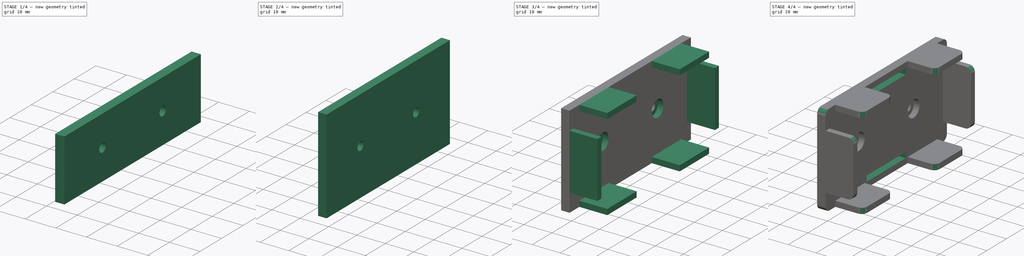
[diagram: build sequence overview — one tinted view per stage of 4, left to right]
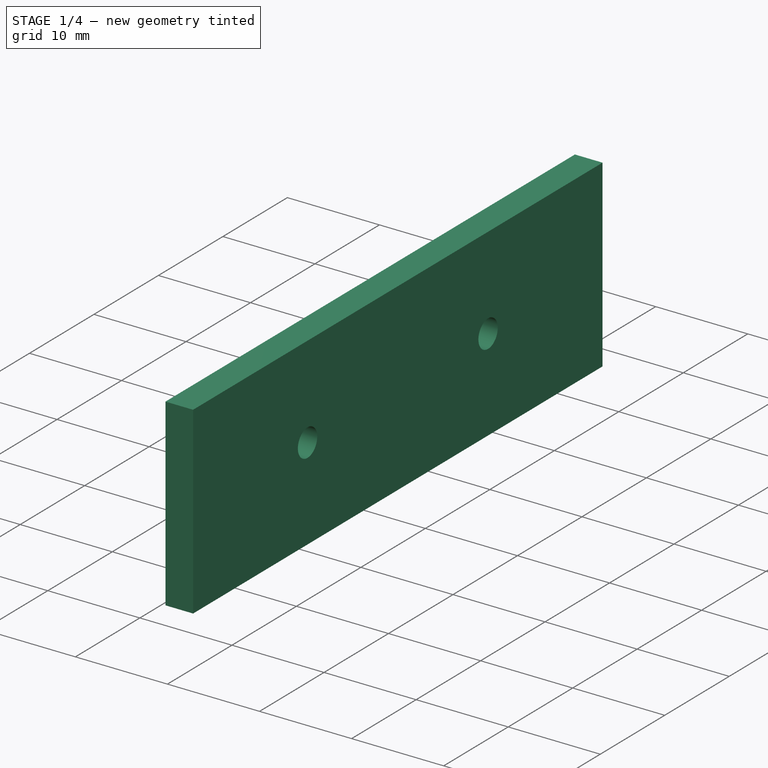
[diagram: stage 1 of 4 — iso view after this stage's code; geometry added in this stage tinted green]
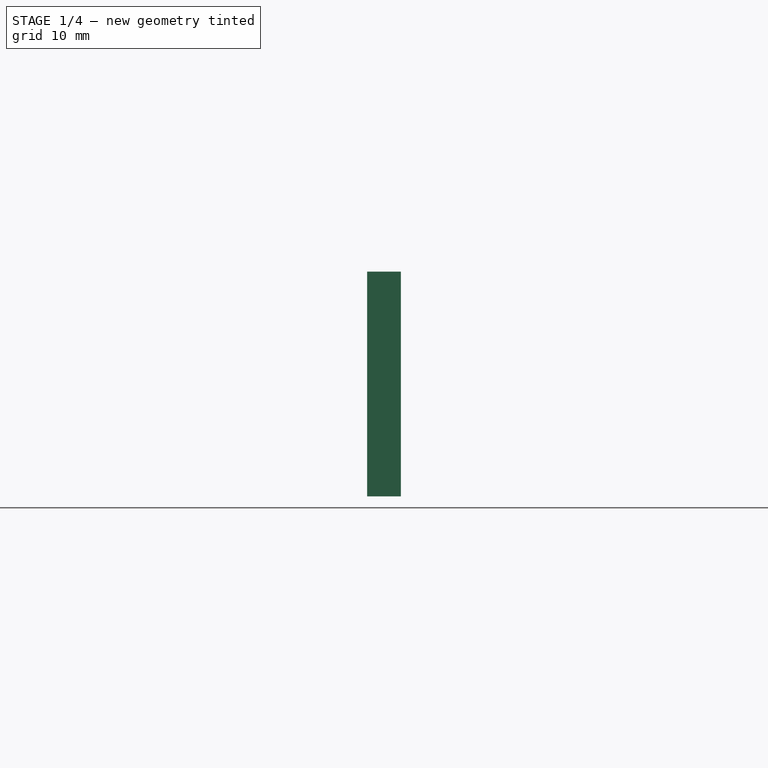
[diagram: stage 1 of 4 — front view after this stage's code; geometry added in this stage tinted green]
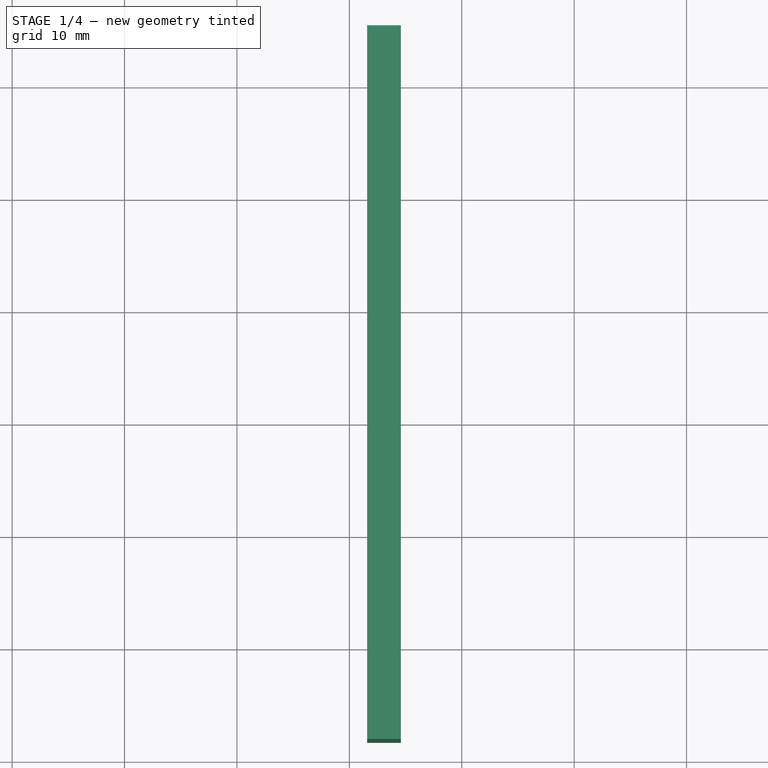
[diagram: stage 1 of 4 — top view after this stage's code; geometry added in this stage tinted green]
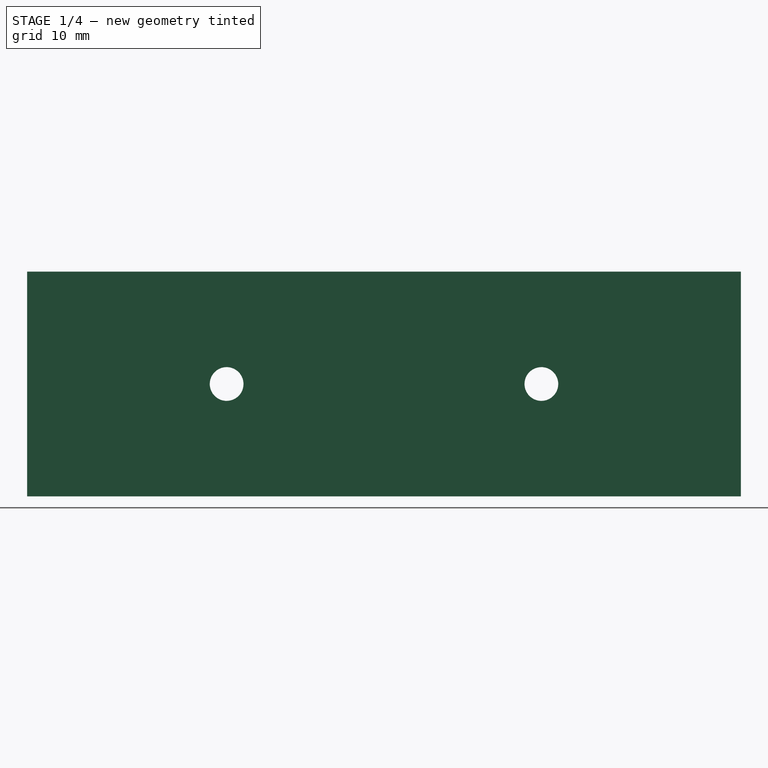
[diagram: stage 1 of 4 — right view after this stage's code; geometry added in this stage tinted green]
FCSTD DOCUMENT  (FreeCAD 0.19R24267 +148 (Git))
Label: robot_nRF9160
License: All rights reserved
LicenseURL: http://en.wikipedia.org/wiki/All_rights_reserved
objects: Sketcher::SketchObject×9, PartDesign::Mirrored×6, PartDesign::Pad×5, App::Part×4, PartDesign::Pocket×4, PartDesign::ShapeBinder×3, PartDesign::Body×3, PartDesign::Plane×3, PartDesign::MultiTransform×2, Part::Feature×1, PartDesign::Fillet×1
note: 47 computed .brp shape members not serialized (recipe doc carries the construction recipe); baked Part::Feature solids carry a one-line shape summary decoded from their .brp

FEATURE [Part::Feature] Feature  label="nRF9160dk"
  shape: bbox 155 x 63.52 x 11.48 mm, 29872 faces, 720 solids (baked)
FEATURE [App::Part] Part  label="nRF9160dk001"
  Group = -> [Feature]
  Origin = -> Origin
FEATURE [PartDesign::ShapeBinder] ShapeBinder
  Support = -> [Feature]
  TraceSupport = false
FEATURE [Sketcher::SketchObject] Sketch
  ExternalGeometry = -> [ShapeBinder]
  FullyConstrained = true
  MapMode = 5
  Placement = pos=(0,0,0) rot=(1,0,0;3.14159rad)
  Support = -> [ShapeBinder]
  sketch-geometry (19):
    g0: LineSegment StartX=36.5823 StartY=-51.7166 StartZ=0 EndX=36.5823 EndY=-115.217 EndZ=0
    g1: LineSegment StartX=36.5823 StartY=-115.217 StartZ=0 EndX=201.582 EndY=-115.218 EndZ=0
    g2: LineSegment StartX=201.582 StartY=-115.218 StartZ=0 EndX=201.582 EndY=-51.7166 EndZ=0
    g3: LineSegment StartX=201.582 StartY=-51.7166 StartZ=0 EndX=36.5823 EndY=-51.7166 EndZ=0
    g4: Circle CenterX=51.8223 CenterY=-107.598 CenterZ=0 NormalX=0 NormalY=0 NormalZ=1 AngleXU=0 Radius=1.5
    g5: Circle CenterX=50.5523 CenterY=-59.3376 CenterZ=0 NormalX=0 NormalY=0 NormalZ=1 AngleXU=0 Radius=1.5
    g6: Circle CenterX=133.102 CenterY=-59.3376 CenterZ=0 NormalX=0 NormalY=0 NormalZ=1 AngleXU=0 Radius=1.5
    g7: LineSegment StartX=196.582 StartY=-56.7166 StartZ=0 EndX=196.582 EndY=-71.217 EndZ=0
    g8: LineSegment StartX=196.582 StartY=-71.217 StartZ=0 EndX=193.582 EndY=-71.217 EndZ=0
    g9: LineSegment StartX=193.582 StartY=-71.217 StartZ=0 EndX=193.582 EndY=-56.7166 EndZ=0
    g10: LineSegment StartX=193.582 StartY=-56.7166 StartZ=0 EndX=196.582 EndY=-56.7166 EndZ=0
    g11: LineSegment StartX=196.582 StartY=-90.7173 StartZ=0 EndX=196.582 EndY=-76.217 EndZ=0
    g12: LineSegment StartX=196.582 StartY=-76.217 StartZ=0 EndX=193.582 EndY=-76.217 EndZ=0
    g13: LineSegment StartX=193.582 StartY=-76.217 StartZ=0 EndX=193.582 EndY=-90.7173 EndZ=0
    g14: LineSegment StartX=193.582 StartY=-90.7173 StartZ=0 EndX=196.582 EndY=-90.7173 EndZ=0
    g15: LineSegment StartX=196.582 StartY=-95.7173 StartZ=0 EndX=193.582 EndY=-95.7173 EndZ=0
    g16: LineSegment StartX=193.582 StartY=-95.7173 StartZ=0 EndX=193.582 EndY=-110.218 EndZ=0
    g17: LineSegment StartX=193.582 StartY=-110.218 StartZ=0 EndX=196.582 EndY=-110.218 EndZ=0
    g18: LineSegment StartX=196.582 StartY=-110.218 StartZ=0 EndX=196.582 EndY=-95.7173 EndZ=0
  constraints (49):
    c: Coincident(g0,g1)
    c: Coincident(g1,g2)
    c: Coincident(g2,g3)
    c: Coincident(g3,g0)
    c: Parallel(g2,g-9)
    c: Tangent(g0,g-6)
    c: Tangent(g3,g-7)
    c: Tangent(g1,g-8)
    c: Distance(g-9,g2) = 10
    c: Coincident(g4,g-4)
    c: Coincident(g5,g-5)
    c: Coincident(g6,g-3)
    c: Diameter(g4) = 3
    c: Diameter(g5) = 3
    c: Diameter(g6) = 3
    c: Coincident(g7,g8)
    c: Coincident(g8,g9)
    c: Coincident(g9,g10)
    c: Coincident(g10,g7)
    c: Parallel(g10,g8)
    c: Parallel(g7,g9)
    c: Perpendicular(g7,g10)
    c: Coincident(g11,g12)
    c: Coincident(g12,g13)
    c: Coincident(g13,g14)
    c: Coincident(g14,g11)
    c: Coincident(g15,g16)
    c: Coincident(g16,g17)
    c: Coincident(g17,g18)
    c: Coincident(g18,g15)
    c: Parallel(g14,g12)
    c: Parallel(g13,g11)
    c: Parallel(g16,g18)
    c: Parallel(g17,g15)
    c: Perpendicular(g14,g11)
    c: Perpendicular(g18,g15)
    c: Tangent(g18,g11)
    c: Tangent(g11,g7)
    c: Parallel(g10,g3)
    c: Distance(g7,g3) = 5
    c: Distance(g7,g2) = 5
    c: Distance(g9,g-9) = 2
    c: Distance(g7,g11) = 5
    c: Distance(g11,g15) = 5
    c: Distance(g17,g1) = 5
    c: Equal(g18,g11)
    c: Equal(g11,g7)
    c: Equal(g8,g12)
    c: Equal(g14,g15)
FEATURE [PartDesign::Pad] Pad
  Direction = (1,1,1)
  Length = 5.5
  Length2 = 100
  Profile = -> Sketch
  Type = 0
FEATURE [Sketcher::SketchObject] Sketch001
  ExternalGeometry = -> [Pad]
  FullyConstrained = true
  MapMode = 5
  Placement = pos=(201.582,-9.24306e-05,0) rot=(0.57735,0.57735,0.57735;2.0944rad)
  Support = -> [Pad]
  sketch-geometry (5):
    g0: LineSegment StartX=83.4673 StartY=1.39e-14 StartZ=0 EndX=83.4673 EndY=-5.5 EndZ=0
    g1: LineSegment StartX=51.7167 StartY=-2.75 StartZ=0 EndX=115.218 EndY=-2.75 EndZ=0
    g2: GeomPoint X=83.4673 Y=-2.75 Z=0
    g3: Circle CenterX=97.4673 CenterY=-2.75 CenterZ=0 NormalX=0 NormalY=0 NormalZ=1 AngleXU=0 Radius=1.5
    g4: Circle CenterX=69.4673 CenterY=-2.75 CenterZ=0 NormalX=0 NormalY=0 NormalZ=1 AngleXU=0 Radius=1.5
  constraints (12):
    c: PointOnObject(g0,g-4)
    c: Perpendicular(g-3,g0)
    c: Symmetric(g-6,g-5,g0)
    c: PointOnObject(g1,g-5)
    c: PointOnObject(g2,g1)
    c: Symmetric(g0,g0,g2)
    c: Symmetric(g-6,g-6,g1)
    c: PointOnObject(g3,g1)
    c: Equal(g3,g4)
    c: Symmetric(g3,g4,g0)
    c: Diameter(g3) = 3
    c: Distance(g3,g4) = 28
FEATURE [PartDesign::Pocket] Pocket
  BaseFeature = -> Pad
  Length = 0
  Length2 = 100
  Profile = -> Sketch001
  Type = 3
  UpToFace = -> Pad [Face13]
FEATURE [Sketcher::SketchObject] Sketch002
  ExternalGeometry = -> [Pocket]
  FullyConstrained = true
  MapMode = 5
  Placement = pos=(0,0,-5.5) rot=(1,0,0;3.14159rad)
  Support = -> [Pocket]
  sketch-geometry (18):
    g0: LineSegment StartX=35.5823 StartY=-109.217 StartZ=0 EndX=35.5823 EndY=-106.117 EndZ=0
    g1: LineSegment StartX=35.5823 StartY=-106.117 StartZ=0 EndX=41.4823 EndY=-106.117 EndZ=0
    g2: LineSegment StartX=41.4823 StartY=-106.117 StartZ=0 EndX=41.4823 EndY=-103.017 EndZ=0
    g3: LineSegment StartX=41.4823 StartY=-103.017 StartZ=0 EndX=44.5823 EndY=-103.017 EndZ=0
    g4: LineSegment StartX=44.5823 StartY=-103.017 StartZ=0 EndX=44.5823 EndY=-106.117 EndZ=0
    g5: LineSegment StartX=44.5823 StartY=-106.117 StartZ=0 EndX=47.6823 EndY=-106.117 EndZ=0
    g6: LineSegment StartX=47.6823 StartY=-106.117 StartZ=0 EndX=47.6823 EndY=-109.217 EndZ=0
    g7: LineSegment StartX=47.6823 StartY=-109.217 StartZ=0 EndX=35.5823 EndY=-109.217 EndZ=0
    g8: LineSegment StartX=35.5825 StartY=-57.7166 StartZ=0 EndX=47.6825 EndY=-57.7167 EndZ=0
    g9: LineSegment StartX=47.6825 StartY=-57.7167 StartZ=0 EndX=47.6824 EndY=-60.8167 EndZ=0
    g10: LineSegment StartX=47.6824 StartY=-60.8167 StartZ=0 EndX=44.5824 EndY=-60.8167 EndZ=0
    g11: LineSegment StartX=44.5824 StartY=-60.8167 StartZ=0 EndX=44.5824 EndY=-63.9167 EndZ=0
    g12: LineSegment StartX=44.5824 StartY=-63.9167 StartZ=0 EndX=41.4824 EndY=-63.9166 EndZ=0
    g13: LineSegment StartX=41.4824 StartY=-63.9166 StartZ=0 EndX=41.4824 EndY=-60.8166 EndZ=0
    g14: LineSegment StartX=41.4824 StartY=-60.8166 StartZ=0 EndX=35.5824 EndY=-60.8166 EndZ=0
    g15: LineSegment StartX=35.5824 StartY=-60.8166 StartZ=0 EndX=35.5825 EndY=-57.7166 EndZ=0
    g16: GeomPoint X=36.5823 Y=-83.4666 Z=0
    g17: LineSegment StartX=201.582 StartY=-83.4672 StartZ=0 EndX=36.5823 EndY=-83.4666 EndZ=0
  constraints (43):
    c: Coincident(g0,g1)
    c: Coincident(g1,g2)
    c: Coincident(g2,g3)
    c: Coincident(g3,g4)
    c: Coincident(g4,g5)
    c: Coincident(g5,g6)
    c: Coincident(g6,g7)
    c: Coincident(g7,g0)
    c: Coincident(g8,g9)
    c: Coincident(g9,g10)
    c: Coincident(g10,g11)
    c: Coincident(g11,g12)
    c: Coincident(g12,g13)
    c: Coincident(g13,g14)
    c: Coincident(g14,g15)
    c: Coincident(g15,g8)
    c: Symmetric(g-5,g-5,g16)
    c: Coincident(g17,g16)
    c: Symmetric(g-6,g-6,g17)
    c: Symmetric(g0,g14,g17)
    c: Symmetric(g0,g8,g17)
    c: Symmetric(g1,g13,g17)
    c: Symmetric(g2,g12,g17)
    c: Symmetric(g3,g11,g17)
    c: Symmetric(g4,g10,g17)
    c: Symmetric(g5,g9,g17)
    c: Symmetric(g6,g8,g17)
    c: Perpendicular(g0,g7)
    c: Perpendicular(g0,g1)
    c: Perpendicular(g7,g6)
    c: Perpendicular(g6,g5)
    c: Parallel(g4,g2)
    c: Parallel(g3,g7)
    c: Parallel(g0,g2)
    c: Equal(g4,g2)
    c: Distance(g0) = 3.1
    c: Distance(g2) = 3.1
    c: Distance(g3) = 3.1
    c: Distance(g5) = 3.1
    c: Distance(g0,g-3) = 6
    c: Distance(g6,g-5) = 11.1
    c: Parallel(g-5,g0)
    c: Distance(g0,g-5) = 1
FEATURE [PartDesign::Pocket] Pocket001
  BaseFeature = -> Pocket
  Length = 3
  Length2 = 100
  Profile = -> Sketch002
  Type = 0
FEATURE [PartDesign::Body] Body
  Group = -> [ShapeBinder,Sketch,Pad,Sketch001,Pocket,Sketch002,Pocket001]
  Origin = -> Origin002
  Tip = -> Pocket001
FEATURE [App::Part] Part001  label="Chassis"
  Group = -> [Body]
  Origin = -> Origin001
FEATURE [PartDesign::ShapeBinder] ShapeBinder001
  Support = -> [Pocket001]
  TraceSupport = false
FEATURE [Sketcher::SketchObject] Sketch003
  ExternalGeometry = -> [ShapeBinder001]
  FullyConstrained = true
  MapMode = 5
  Placement = pos=(201.582,-9.24306e-05,0) rot=(0.57735,0.57735,0.57735;2.0944rad)
  Support = -> [ShapeBinder001]
  sketch-geometry (7):
    g0: LineSegment StartX=51.7167 StartY=7.25 StartZ=0 EndX=115.218 EndY=7.25 EndZ=0
    g1: LineSegment StartX=115.218 StartY=7.25 StartZ=0 EndX=115.218 EndY=-12.75 EndZ=0
    g2: LineSegment StartX=115.218 StartY=-12.75 StartZ=0 EndX=51.7167 EndY=-12.75 EndZ=0
    g3: LineSegment StartX=51.7167 StartY=-12.75 StartZ=0 EndX=51.7167 EndY=7.25 EndZ=0
    g4: Circle CenterX=97.4673 CenterY=-2.75 CenterZ=0 NormalX=0 NormalY=0 NormalZ=1 AngleXU=0 Radius=1.5
    g5: Circle CenterX=69.4673 CenterY=-2.75 CenterZ=0 NormalX=0 NormalY=0 NormalZ=1 AngleXU=0 Radius=1.5
    g6: LineSegment StartX=69.4673 StartY=-2.75 StartZ=0 EndX=97.4673 EndY=-2.75 EndZ=0
  constraints (16):
    c: Coincident(g0,g1)
    c: Coincident(g1,g2)
    c: Coincident(g2,g3)
    c: Coincident(g3,g0)
    c: Equal(g-7,g4)
    c: Coincident(g5,g-8)
    c: Equal(g-8,g5)
    c: Parallel(g0,g2)
    c: Parallel(g2,g-3)
    c: Tangent(g1,g-6)
    c: Tangent(g3,g-4)
    c: Coincident(g6,g5)
    c: Coincident(g6,g4)
    c: Coincident(g4,g-7)
    c: Symmetric(g1,g0,g6)
    c: Distance(g1) = 20
FEATURE [PartDesign::Pad] Pad001
  Direction = (1,1,1)
  Length = 3
  Length2 = 100
  Profile = -> Sketch003
  Type = 0
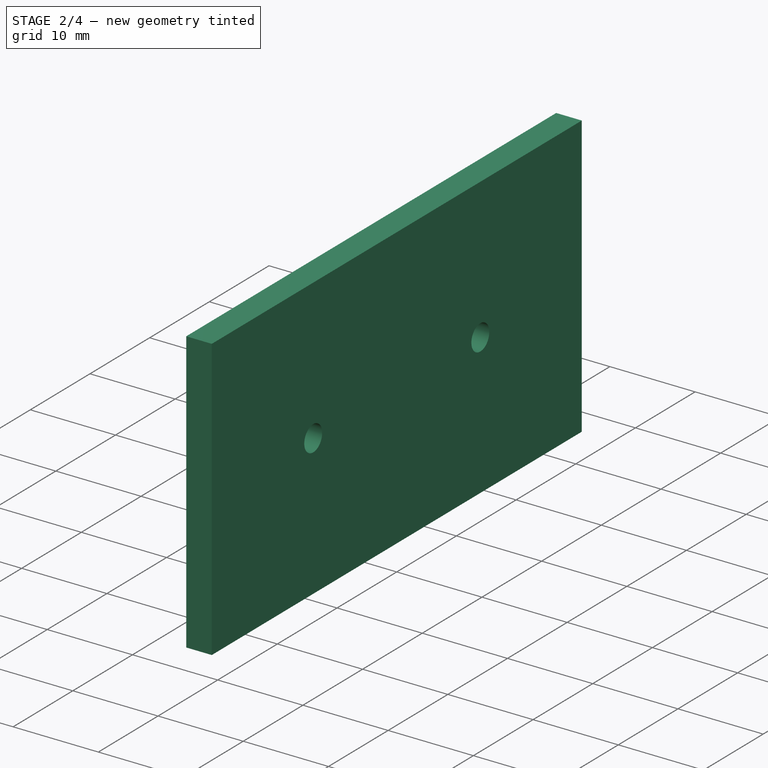
[diagram: stage 2 of 4 — iso view after this stage's code; geometry added in this stage tinted green]
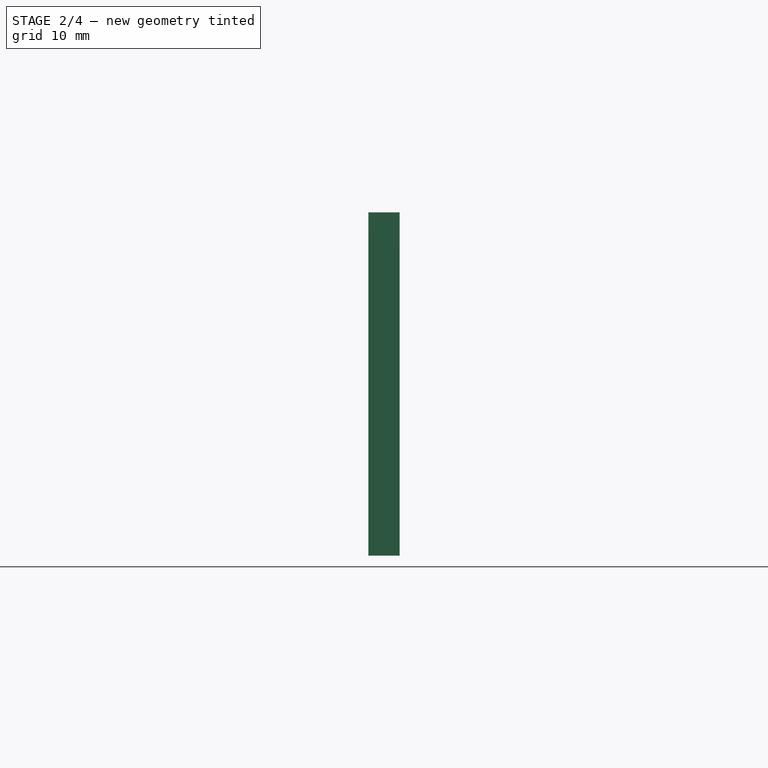
[diagram: stage 2 of 4 — front view after this stage's code; geometry added in this stage tinted green]
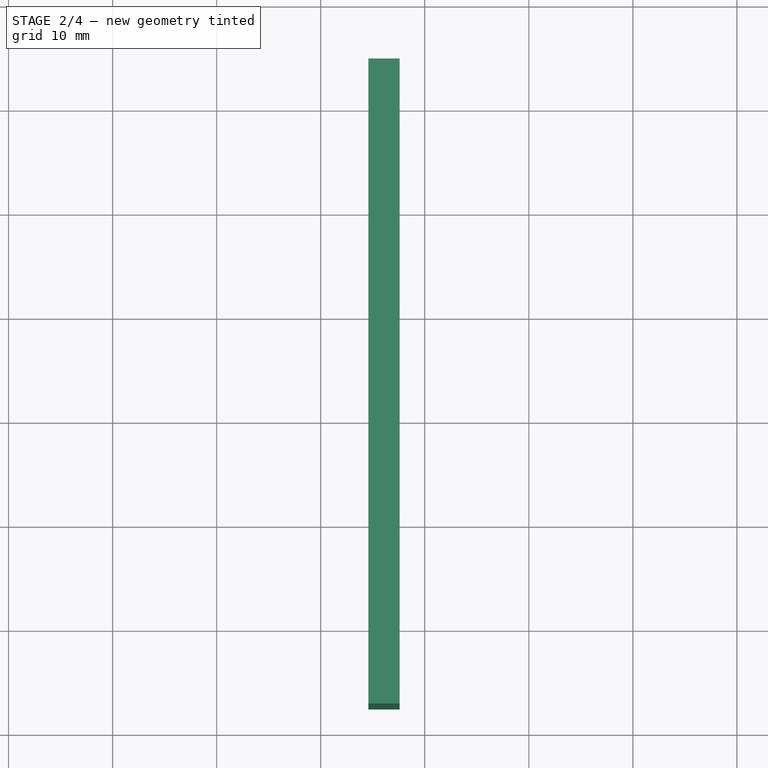
[diagram: stage 2 of 4 — top view after this stage's code; geometry added in this stage tinted green]
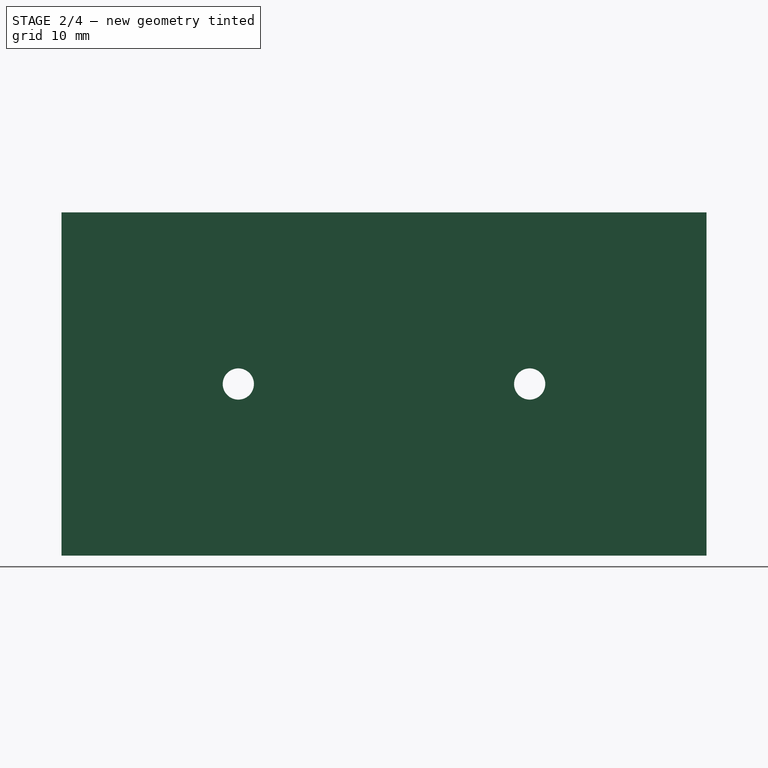
[diagram: stage 2 of 4 — right view after this stage's code; geometry added in this stage tinted green]
FEATURE [Sketcher::SketchObject] Sketch004
  ExternalGeometry = -> [Pad001,ShapeBinder001]
  FullyConstrained = true
  MapMode = 5
  Placement = pos=(5.28303e-05,115.218,-1.014e-13) rot=(0,0.707107,0.707107;3.14159rad)
  Support = -> [Pad001]
  sketch-geometry (4):
    g0: LineSegment StartX=-201.582 StartY=0.1 StartZ=0 EndX=-196.582 EndY=0.1 EndZ=0
    g1: LineSegment StartX=-196.582 StartY=0.1 StartZ=0 EndX=-196.582 EndY=2.25002 EndZ=0
    g2: LineSegment StartX=-201.582 StartY=0.1 StartZ=0 EndX=-201.582 EndY=7.25 EndZ=0
    g3: ArcOfCircle CenterX=-196.582 CenterY=7.25002 CenterZ=0 NormalX=0 NormalY=0 NormalZ=1 AngleXU=0 Radius=5 StartAngle=3.1416 EndAngle=4.71239
  constraints (12):
    c: Coincident(g1,g0)
    c: Coincident(g2,g0)
    c: Coincident(g2,g-4)
    c: PointOnObject(g0,g-4)
    c: Perpendicular(g2,g0)
    c: Perpendicular(g1,g0)
    c: Distance(g0,g-5) = 0.1
    c: Distance(g0) = 5
    c: Coincident(g3,g2)
    c: Coincident(g3,g1)
    c: Perpendicular(g3,g1)
    c: Tangent(g3,g2)
FEATURE [PartDesign::Pad] Pad002
  BaseFeature = -> Pad001
  Direction = (1,1,1)
  Length = 10
  Length2 = 100
  Profile = -> Sketch004
  Type = 3
  UpToFace = -> Pad001 [Face4]
FEATURE [PartDesign::Plane] DatumPlane
  Length = 265.466
  MapMode = 45
  Placement = pos=(201.582,51.7166,-2.75) rot=(0,0,1;0rad)
  ResizeMode = 0
  Support = -> [Pad002]
  Width = 176.102
FEATURE [PartDesign::Mirrored] Mirrored
  BaseFeature = -> Pad002
  MirrorPlane = -> DatumPlane
  Originals = -> [Pad002]
FEATURE [PartDesign::Body] Body001
  Group = -> [ShapeBinder001,Sketch003,Pad001,Sketch004,Pad002,DatumPlane,Mirrored]
  Origin = -> Origin004
  Tip = -> Mirrored
FEATURE [App::Part] Part002  label="Battery bracket mount"
  Group = -> [Body001]
  Origin = -> Origin003
FEATURE [PartDesign::ShapeBinder] ShapeBinder002
  Placement = pos=(3,-1.37558e-06,0) rot=(0,0,1;0rad)
  Support = -> [Mirrored]
  TraceSupport = false
FEATURE [Sketcher::SketchObject] Sketch005
  ExternalGeometry = -> [ShapeBinder002]
  FullyConstrained = true
  MapMode = 5
  Placement = pos=(204.582,-9.38062e-05,0) rot=(0.57735,0.57735,0.57735;2.0944rad)
  Support = -> [ShapeBinder002]
  sketch-geometry (9):
    g0: LineSegment StartX=97.4673 StartY=-2.75 StartZ=0 EndX=69.4673 EndY=-2.75 EndZ=0
    g1: Circle CenterX=97.4673 CenterY=-2.75 CenterZ=0 NormalX=0 NormalY=0 NormalZ=1 AngleXU=0 Radius=1.5
    g2: Circle CenterX=69.4673 CenterY=-2.75 CenterZ=0 NormalX=0 NormalY=0 NormalZ=1 AngleXU=0 Radius=1.5
    g3: GeomPoint X=83.4673 Y=-2.75 Z=0
    g4: LineSegment StartX=83.4673 StartY=13.75 StartZ=0 EndX=83.4673 EndY=-19.25 EndZ=0
    g5: LineSegment StartX=52.4673 StartY=13.75 StartZ=0 EndX=52.4673 EndY=-19.25 EndZ=0
    g6: LineSegment StartX=52.4673 StartY=-19.25 StartZ=0 EndX=114.467 EndY=-19.25 EndZ=0
    g7: LineSegment StartX=114.467 StartY=-19.25 StartZ=0 EndX=114.467 EndY=13.75 EndZ=0
    g8: LineSegment StartX=114.467 StartY=13.75 StartZ=0 EndX=52.4673 EndY=13.75 EndZ=0
  constraints (20):
    c: Coincident(g0,g-4)
    c: Coincident(g0,g-3)
    c: Coincident(g1,g0)
    c: Symmetric(g2,g1,g3)
    c: Coincident(g2,g0)
    c: Symmetric(g4,g4,g3)
    c: Perpendicular(g4,g0)
    c: Equal(g2,g-3)
    c: Equal(g1,g-4)
    c: Coincident(g5,g6)
    c: Coincident(g6,g7)
    c: Coincident(g7,g8)
    c: Coincident(g8,g5)
    c: PointOnObject(g4,g8)
    c: Perpendicular(g8,g5)
    c: Symmetric(g7,g5,g3)
    c: Symmetric(g6,g5,g3)
    c: Perpendicular(g8,g4)
    c: Distance(g8) = 62
    c: Distance(g7) = 33
FEATURE [PartDesign::Pad] Pad003
  Direction = (1,1,1)
  Length = 3
  Length2 = 100
  Placement = pos=(3,-1.37558e-06,0) rot=(0,0,1;0rad)
  Profile = -> Sketch005
  Type = 0
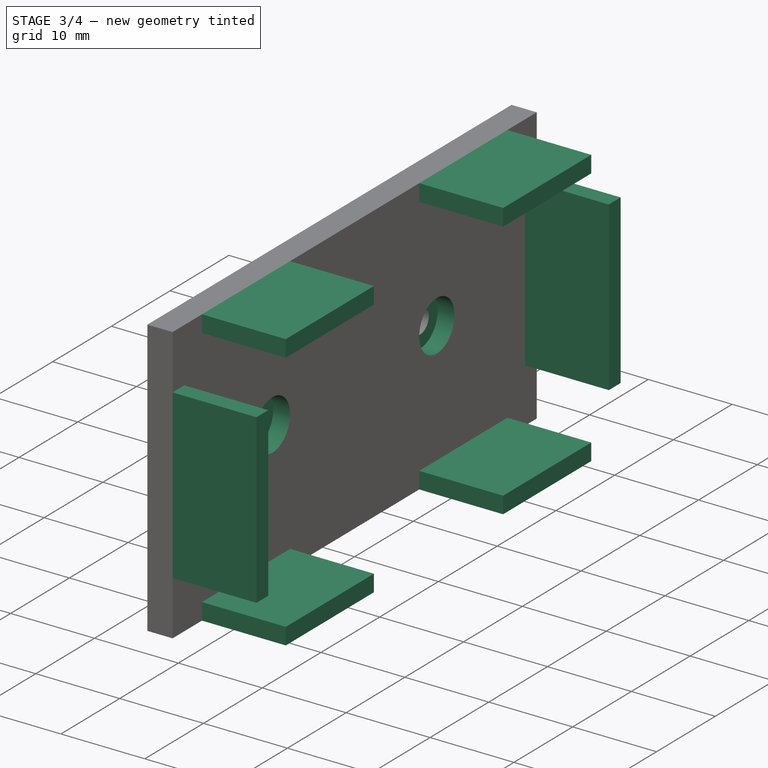
[diagram: stage 3 of 4 — iso view after this stage's code; geometry added in this stage tinted green]
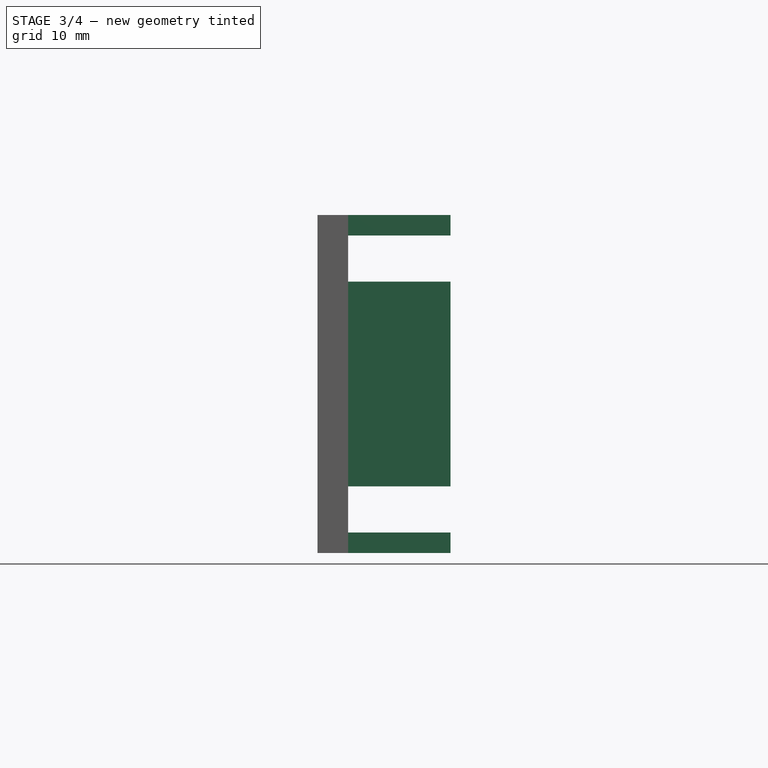
[diagram: stage 3 of 4 — front view after this stage's code; geometry added in this stage tinted green]
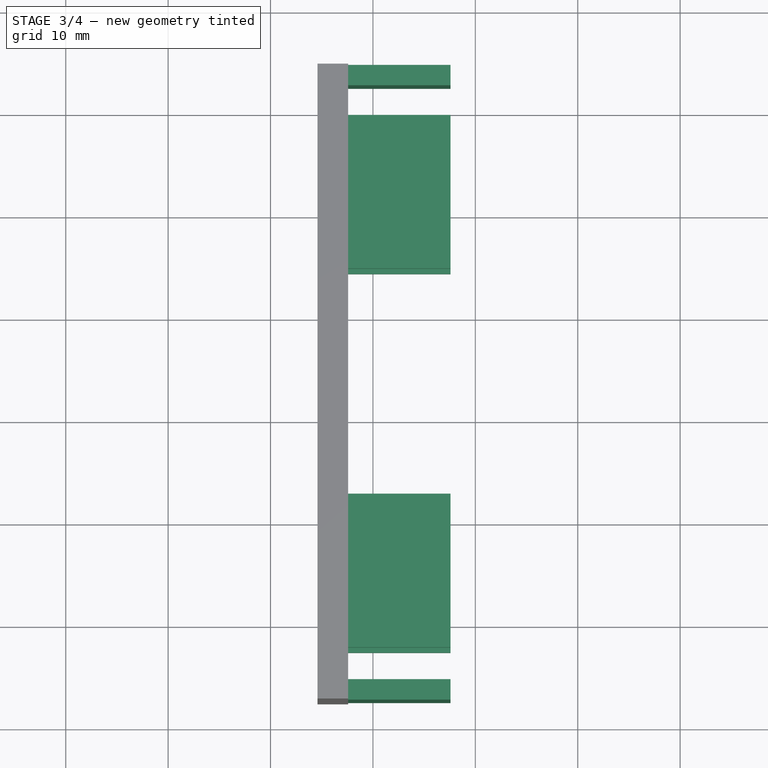
[diagram: stage 3 of 4 — top view after this stage's code; geometry added in this stage tinted green]
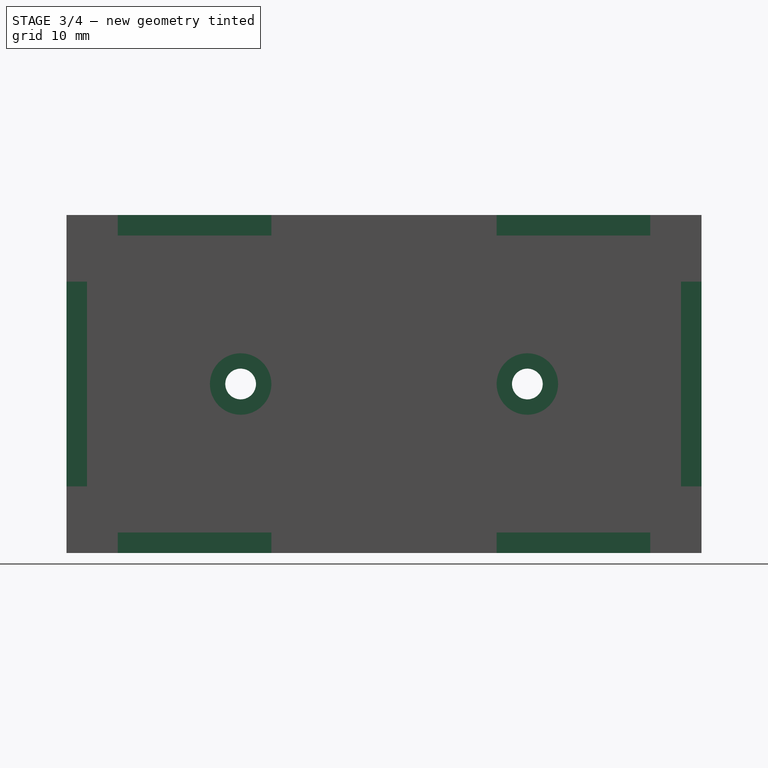
[diagram: stage 3 of 4 — right view after this stage's code; geometry added in this stage tinted green]
FEATURE [Sketcher::SketchObject] Sketch006
  ExternalGeometry = -> [Pad003]
  FullyConstrained = true
  MapMode = 5
  Placement = pos=(207.582,-9.51818e-05,0) rot=(0.57735,0.57735,0.57735;2.0944rad)
  Support = -> [Pad003]
  sketch-geometry (2):
    g0: Circle CenterX=97.4673 CenterY=-2.75 CenterZ=0 NormalX=0 NormalY=0 NormalZ=1 AngleXU=0 Radius=3
    g1: Circle CenterX=69.4673 CenterY=-2.75 CenterZ=0 NormalX=0 NormalY=0 NormalZ=1 AngleXU=0 Radius=3
  constraints (4):
    c: Coincident(g0,g-8)
    c: Coincident(g1,g-7)
    c: Diameter(g1) = 6
    c: Equal(g1,g0)
FEATURE [PartDesign::Pocket] Pocket002
  BaseFeature = -> Pad003
  Length = 2
  Length2 = 100
  Placement = pos=(3,-1.37558e-06,0) rot=(0,0,1;0rad)
  Profile = -> Sketch006
  Type = 0
FEATURE [Sketcher::SketchObject] Sketch007
  ExternalGeometry = -> [Pocket002]
  FullyConstrained = true
  MapMode = 5
  Placement = pos=(207.582,-9.51818e-05,0) rot=(0.57735,0.57735,0.57735;2.0944rad)
  Support = -> [Pocket002]
  sketch-geometry (12):
    g0: GeomPoint X=52.4673 Y=-2.75 Z=0
    g1: GeomPoint X=114.467 Y=-2.75 Z=0
    g2: GeomPoint X=83.4673 Y=13.75 Z=0
    g3: GeomPoint X=83.4673 Y=-19.25 Z=0
    g4: LineSegment StartX=52.4673 StartY=-2.75 StartZ=0 EndX=54.4673 EndY=-2.75 EndZ=0
    g5: LineSegment StartX=54.4673 StartY=-2.75 StartZ=0 EndX=54.4673 EndY=7.25 EndZ=0
    g6: LineSegment StartX=54.4673 StartY=7.25 StartZ=0 EndX=52.4673 EndY=7.25 EndZ=0
    g7: LineSegment StartX=52.4673 StartY=7.25 StartZ=0 EndX=52.4673 EndY=-2.75 EndZ=0
    g8: LineSegment StartX=57.4673 StartY=13.75 StartZ=0 EndX=57.4673 EndY=11.75 EndZ=0
    g9: LineSegment StartX=57.4673 StartY=11.75 StartZ=0 EndX=72.4673 EndY=11.75 EndZ=0
    g10: LineSegment StartX=72.4673 StartY=11.75 StartZ=0 EndX=72.4673 EndY=13.75 EndZ=0
    g11: LineSegment StartX=72.4673 StartY=13.75 StartZ=0 EndX=57.4673 EndY=13.75 EndZ=0
  constraints (27):
    c: Symmetric(g-5,g-4,g1)
    c: Symmetric(g-4,g-6,g2)
    c: Symmetric(g-6,g-6,g0)
    c: Symmetric(g-6,g-5,g3)
    c: Coincident(g4,g0)
    c: Coincident(g4,g5)
    c: Coincident(g5,g6)
    c: Coincident(g6,g7)
    c: Coincident(g7,g4)
    c: PointOnObject(g8,g-3)
    c: Coincident(g8,g9)
    c: Coincident(g9,g10)
    c: PointOnObject(g10,g-3)
    c: Coincident(g10,g11)
    c: Coincident(g11,g8)
    c: PointOnObject(g6,g-6)
    c: Perpendicular(g7,g6)
    c: Perpendicular(g6,g5)
    c: Perpendicular(g7,g4)
    c: Perpendicular(g11,g8)
    c: Perpendicular(g9,g8)
    c: Perpendicular(g10,g9)
    c: Distance(g8) = 2
    c: Distance(g8,g-6) = 5
    c: Distance(g11) = 15
    c: Distance(g6) = 2
    c: Distance(g5) = 10
FEATURE [PartDesign::Pad] Pad004
  BaseFeature = -> Pocket002
  Direction = (1,1,1)
  Length = 10
  Length2 = 100
  Placement = pos=(3,-1.37558e-06,0) rot=(0,0,1;0rad)
  Profile = -> Sketch007
  Type = 0
FEATURE [PartDesign::Plane] DatumPlane001
  Length = 264.609
  MapMode = 45
  Placement = pos=(207.582,83.4672,-19.25) rot=(0,0.707107,0.707107;3.14159rad)
  ResizeMode = 0
  Support = -> [Pad004]
  Width = 72.0265
FEATURE [PartDesign::Mirrored] Mirrored001
  MirrorPlane = -> Pad004 [Face14]
  Placement = pos=(3,-1.37558e-06,2e-16) rot=(0,0,1;0rad)
FEATURE [PartDesign::Mirrored] Mirrored002
  MirrorPlane = -> DatumPlane001
  Placement = pos=(3,-1.37558e-06,2e-16) rot=(0,0,1;0rad)
FEATURE [PartDesign::MultiTransform] MultiTransform
  BaseFeature = -> Pad004
  Originals = -> [Pad004]
  Placement = pos=(3,-1.37558e-06,0) rot=(0,0,1;0rad)
  Transformations = -> [Mirrored001,Mirrored002]
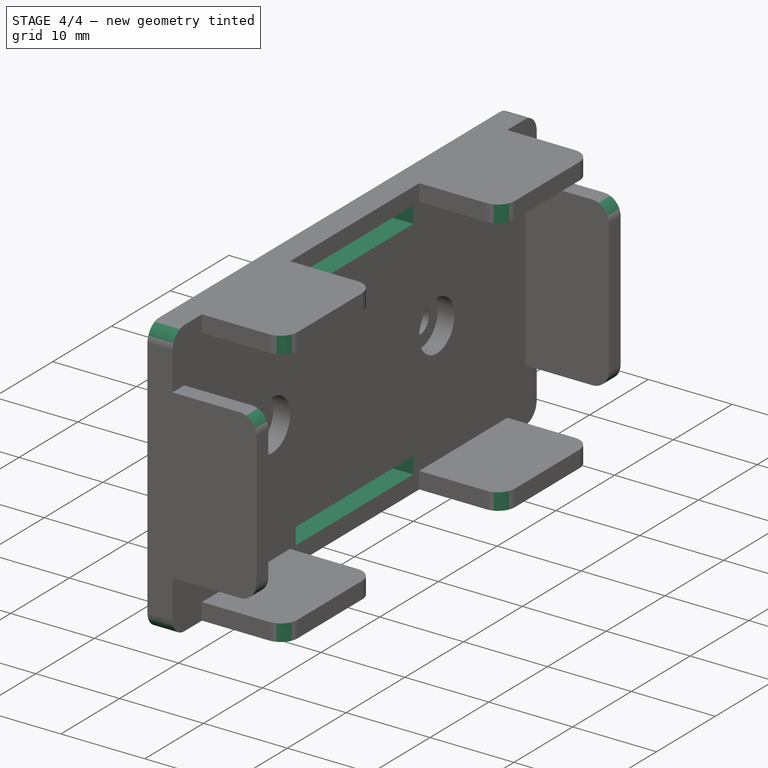
[diagram: stage 4 of 4 — iso view after this stage's code; geometry added in this stage tinted green]
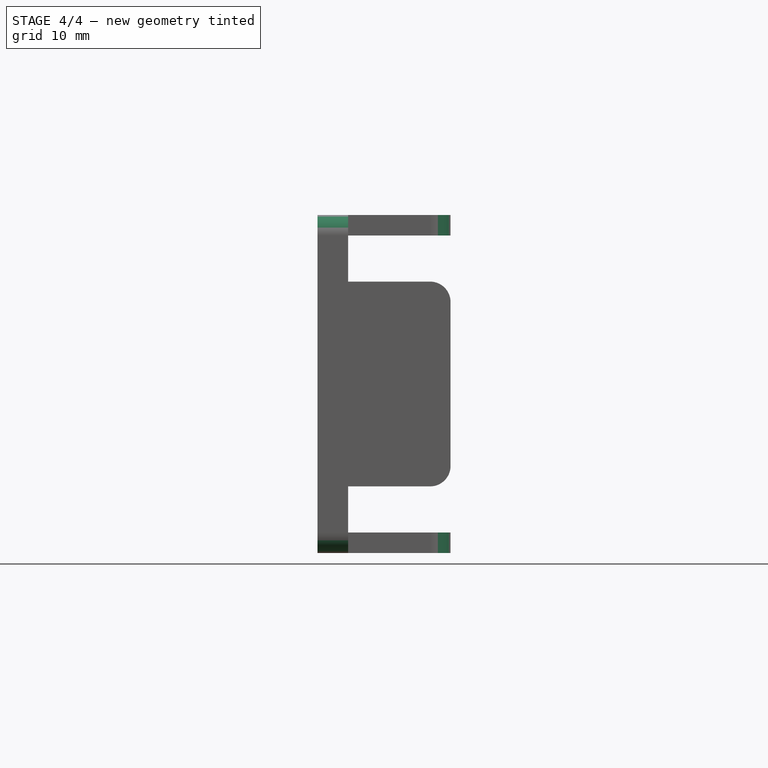
[diagram: stage 4 of 4 — front view after this stage's code; geometry added in this stage tinted green]
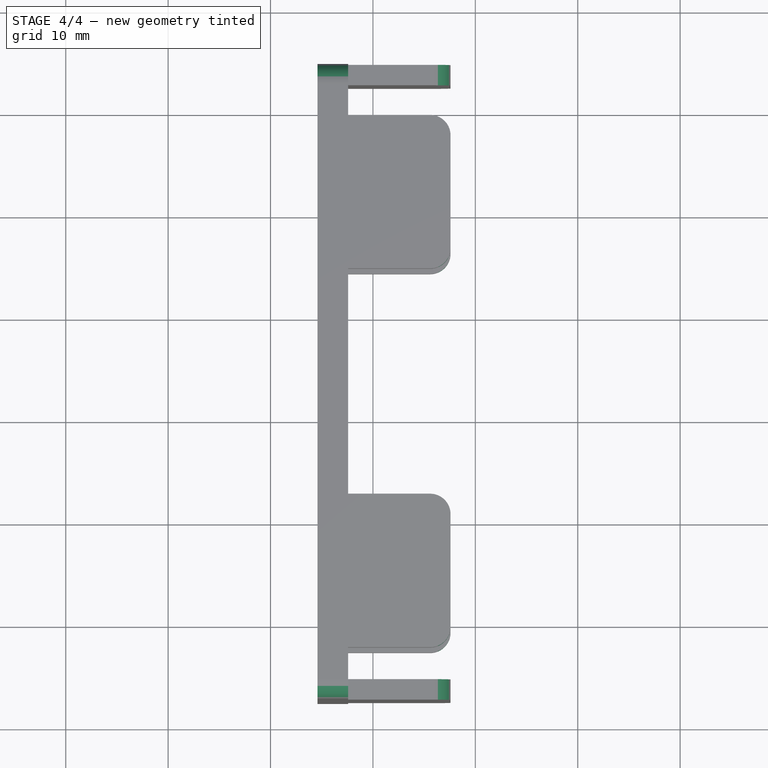
[diagram: stage 4 of 4 — top view after this stage's code; geometry added in this stage tinted green]
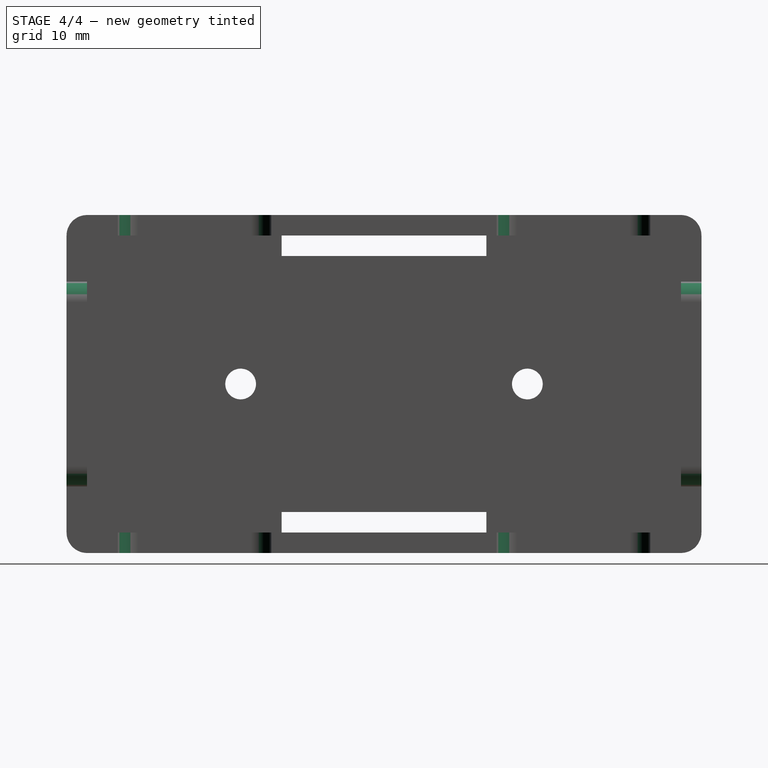
[diagram: stage 4 of 4 — right view after this stage's code; geometry added in this stage tinted green]
FEATURE [PartDesign::Fillet] Fillet
  Base = -> MultiTransform [Edge73,Edge107,Edge76,Edge1]
  BaseFeature = -> MultiTransform
  Placement = pos=(3,-1.37558e-06,0) rot=(0,0,1;0rad)
  Radius = 2
  SupportTransform = false
FEATURE [PartDesign::Plane] DatumPlane002
  Length = 279.369
  MapMode = 45
  Placement = pos=(207.582,114.467,-2.75) rot=(0,0,1;0rad)
  ResizeMode = 0
  Support = -> [Fillet]
  Width = 176.254
FEATURE [PartDesign::Mirrored] Mirrored003
  MirrorPlane = -> DatumPlane001
  Placement = pos=(3,-1.37558e-06,2e-16) rot=(0,0,1;0rad)
FEATURE [PartDesign::Mirrored] Mirrored004
  MirrorPlane = -> DatumPlane002
  Placement = pos=(3,-1.37558e-06,2e-16) rot=(0,0,1;0rad)
FEATURE [PartDesign::MultiTransform] MultiTransform001
  BaseFeature = -> Fillet
  Originals = -> [Fillet]
  Placement = pos=(3,-1.37558e-06,0) rot=(0,0,1;0rad)
  Transformations = -> [Mirrored003,Mirrored004]
FEATURE [Sketcher::SketchObject] Sketch008
  ExternalGeometry = -> [MultiTransform001]
  FullyConstrained = true
  MapMode = 5
  Placement = pos=(207.582,-9.51818e-05,0) rot=(0.57735,0.57735,0.57735;2.0944rad)
  Support = -> [MultiTransform001]
  sketch-geometry (7):
    g0: LineSegment StartX=73.4673 StartY=11.75 StartZ=0 EndX=73.4673 EndY=9.75 EndZ=0
    g1: LineSegment StartX=73.4673 StartY=9.75 StartZ=0 EndX=93.4673 EndY=9.75 EndZ=0
    g2: LineSegment StartX=93.4673 StartY=9.75 StartZ=0 EndX=93.4673 EndY=11.75 EndZ=0
    g3: LineSegment StartX=93.4673 StartY=11.75 StartZ=0 EndX=73.4673 EndY=11.75 EndZ=0
    g4: GeomPoint X=83.4673 Y=13.75 Z=0
    g5: GeomPoint X=83.4673 Y=-19.25 Z=0
    g6: LineSegment StartX=83.4673 StartY=13.75 StartZ=0 EndX=83.4673 EndY=-19.25 EndZ=0
  constraints (15):
    c: Coincident(g0,g1)
    c: Coincident(g1,g2)
    c: Coincident(g2,g3)
    c: Coincident(g3,g0)
    c: Parallel(g2,g0)
    c: Parallel(g1,g3)
    c: Perpendicular(g2,g3)
    c: Distance(g0) = 2
    c: Distance(g1,g0) = 20
    c: Symmetric(g-3,g-3,g4)
    c: Symmetric(g-5,g-5,g5)
    c: Coincident(g6,g4)
    c: Coincident(g6,g5)
    c: Symmetric(g2,g0,g6)
    c: Distance(g4,g3) = 2
FEATURE [PartDesign::Pocket] Pocket003
  BaseFeature = -> MultiTransform001
  Length = 0
  Length2 = 100
  Placement = pos=(3,-1.37558e-06,0) rot=(0,0,1;0rad)
  Profile = -> Sketch008
  Type = 3
  UpToFace = -> MultiTransform001 [Face2]
FEATURE [PartDesign::Mirrored] Mirrored005
  BaseFeature = -> Pocket003
  MirrorPlane = -> DatumPlane002
  Originals = -> [Pocket003]
  Placement = pos=(3,-1.37558e-06,0) rot=(0,0,1;0rad)
FEATURE [PartDesign::Body] Body002
  Group = -> [ShapeBinder002,Sketch005,Pad003,Sketch006,Pocket002,Sketch007,Pad004,DatumPlane001,MultiTransform,Mirrored001,Mirrored002,Fillet,DatumPlane002,MultiTransform001,Mirrored003,Mirrored004,Sketch008,Pocket003,Mirrored005]
  Origin = -> Origin006
  Tip = -> Mirrored005
FEATURE [App::Part] Part003  label="Battery bracket"
  Group = -> [Body002]
  Origin = -> Origin005
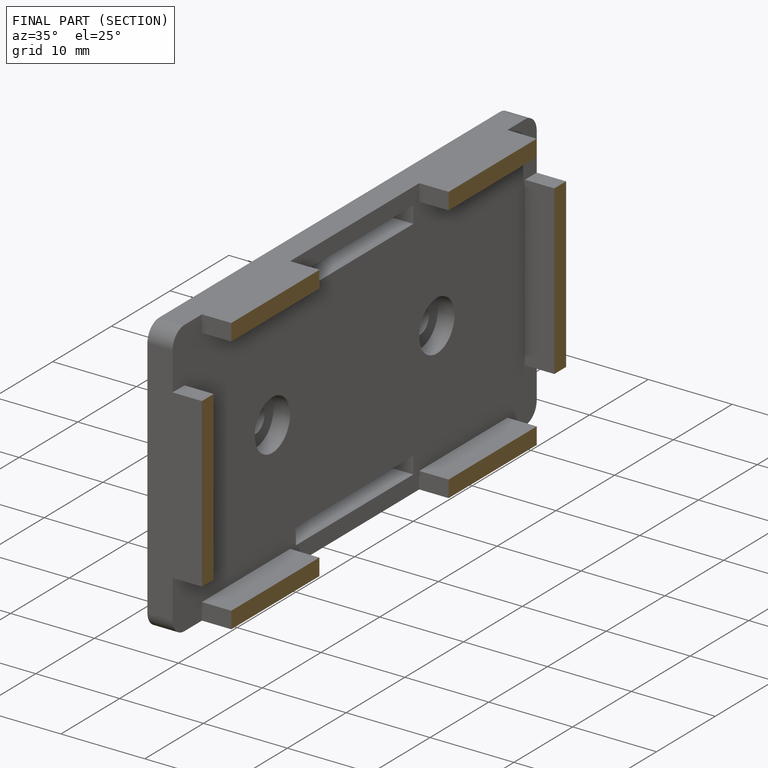
[diagram: finished part — half-section view (interior)]
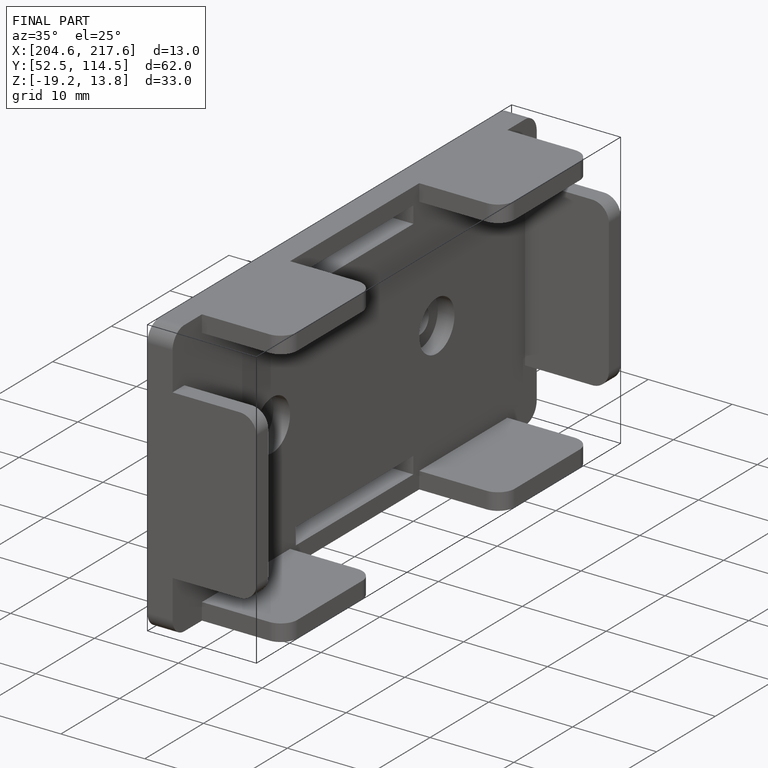
[diagram: finished part — iso view with bounding-box wireframe]
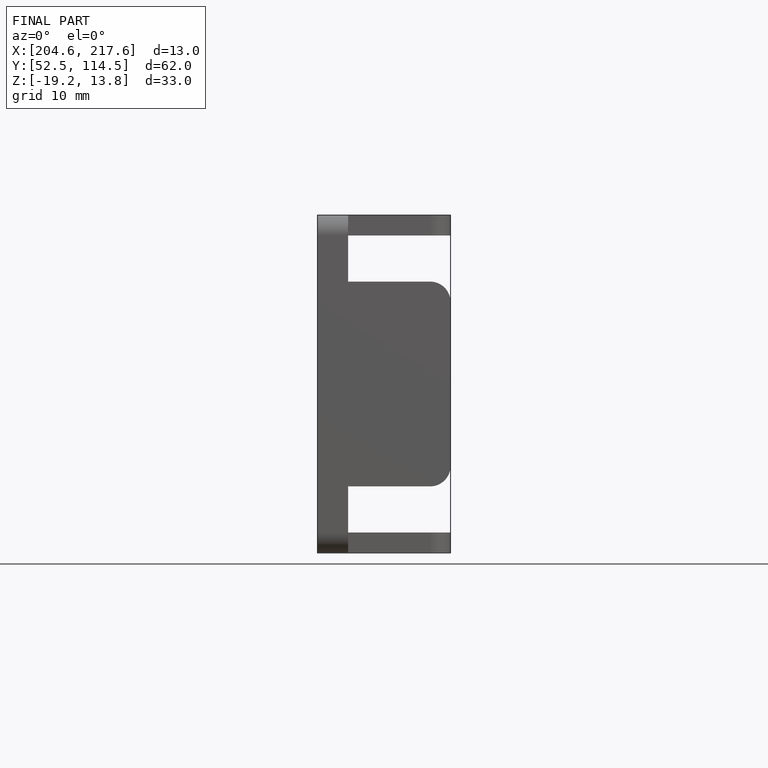
[diagram: finished part — front view with bounding-box wireframe]
